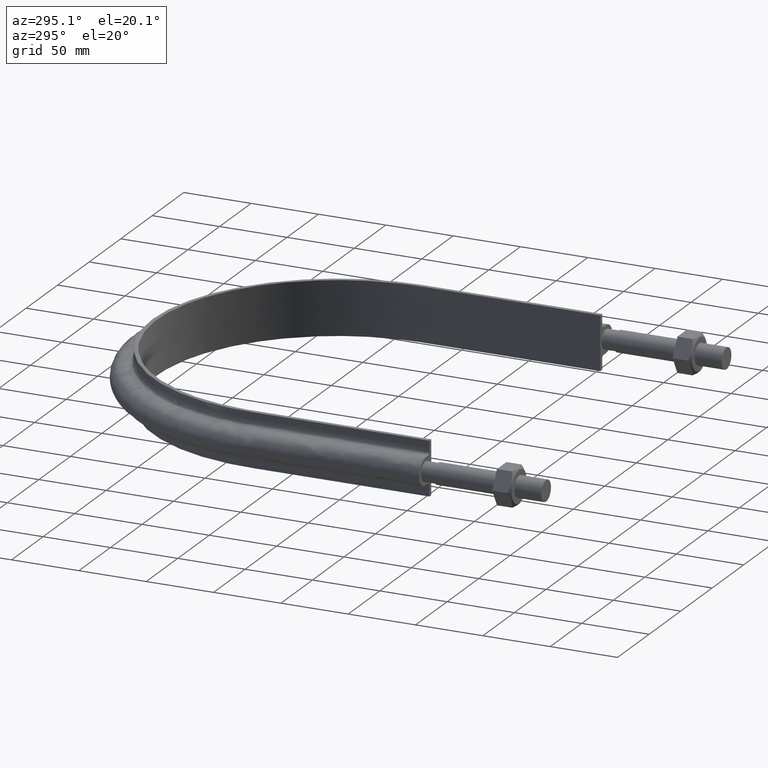
[diagram: clean part render]
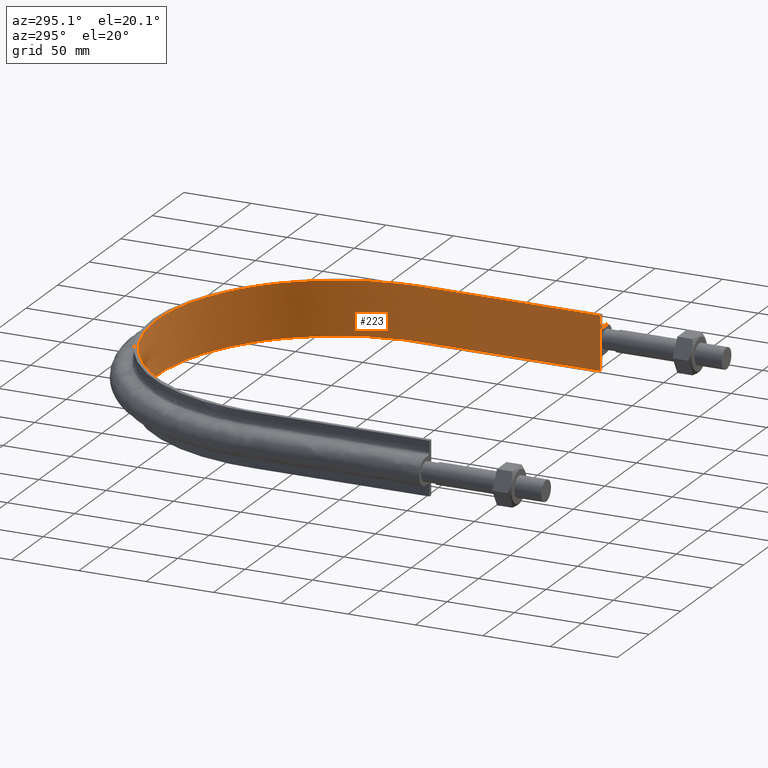
[diagram: same view with one face highlighted and labeled with its STEP entity id]
A machine part, auxiliary view. The second image highlights one B-rep face of the part: STEP entity #223.
In plain terms, the highlighted face is a SurfaceOfExtrusion surface.
Its self-contained STEP definition (entity closure, byte-faithful):
#223 = ADVANCED_FACE( '', ( #287 ), #288, .T. );
#287 = FACE_OUTER_BOUND( '', #970, .T. );
#288 = SURFACE_OF_LINEAR_EXTRUSION( '', #971, #972 );
#970 = EDGE_LOOP( '', ( #1682, #1683, #1684, #1685 ) );
#971 = B_SPLINE_CURVE_WITH_KNOTS( '', 3, ( #1686, #1687, #1688, #1689, #1690, #1691, #1692, #1693, #1694, #1695, #1696, #1697, #1698, #1699, #1700, #1701, #1702 ), .UNSPECIFIED., .F., .F., ( 4, 3, 1, 1, 1, 1, 1, 1, 1, 3, 4 ), ( -10.0000000000000, -9.00000000000000, -8.00000000000000, -7.00000000000000, -6.00000000000000, -5.00000000000000, -4.00000000000000, -3.00000000000000, -2.00000000000000, -1.00000000000000, 0.000000000000000 ), .UNSPECIFIED. );
#972 = VECTOR( '', #1703, 1000.00000000000 );
#1682 = ORIENTED_EDGE( '', *, *, #2056, .T. );
#1683 = ORIENTED_EDGE( '', *, *, #2057, .F. );
#1684 = ORIENTED_EDGE( '', *, *, #2053, .F. );
#1685 = ORIENTED_EDGE( '', *, *, #2058, .T. );
#1686 = CARTESIAN_POINT( '', ( -133.950000000000, 89.5000000000001, -440.423363781454 ) );
#1687 = CARTESIAN_POINT( '', ( -133.950000000000, 133.683333333333, -440.423363781454 ) );
#1688 = CARTESIAN_POINT( '', ( -133.950000000000, 177.866666666667, -440.423363781454 ) );
#1689 = CARTESIAN_POINT( '', ( -133.950000000000, 222.050000000000, -440.423363781454 ) );
#1690 = CARTESIAN_POINT( '', ( -133.950000000000, 239.566032700257, -440.423363781454 ) );
#1691 = CARTESIAN_POINT( '', ( -126.975474198415, 274.652216480459, -440.423363781454 ) );
#1692 = CARTESIAN_POINT( '', ( -97.1828205848687, 319.230867859828, -440.423363781454 ) );
#1693 = CARTESIAN_POINT( '', ( -52.5949635017385, 349.026032119855, -440.423363781454 ) );
#1694 = CARTESIAN_POINT( '', ( 9.95341556962034E-014, 359.486983940073, -440.423363781454 ) );
#1695 = CARTESIAN_POINT( '', ( 52.5949635017385, 349.026032119855, -440.423363781454 ) );
#1696 = CARTESIAN_POINT( '', ( 97.1828205848688, 319.230867859828, -440.423363781454 ) );
#1697 = CARTESIAN_POINT( '', ( 126.975474198415, 274.652216480460, -440.423363781454 ) );
#1698 = CARTESIAN_POINT( '', ( 133.950000000000, 239.566032700257, -440.423363781454 ) );
#1699 = CARTESIAN_POINT( '', ( 133.950000000000, 222.050000000000, -440.423363781454 ) );
#1700 = CARTESIAN_POINT( '', ( 133.950000000000, 177.866666666667, -440.423363781454 ) );
#1701 = CARTESIAN_POINT( '', ( 133.950000000000, 133.683333333333, -440.423363781454 ) );
#1702 = CARTESIAN_POINT( '', ( 133.950000000000, 89.5000000000000, -440.423363781454 ) );
#1703 = DIRECTION( '', ( 0.000000000000000, 0.000000000000000, 1.00000000000000 ) );
#2053 = EDGE_CURVE( '', #2166, #2167, #2168, .T. );
#2056 = EDGE_CURVE( '', #2171, #2172, #2173, .T. );
#2057 = EDGE_CURVE( '', #2167, #2172, #2174, .T. );
#2058 = EDGE_CURVE( '', #2166, #2171, #2175, .T. );
#2166 = VERTEX_POINT( '', #2736 );
#2167 = VERTEX_POINT( '', #2737 );
#2168 = LINE( '', #2738, #2739 );
#2171 = VERTEX_POINT( '', #2744 );
#2172 = VERTEX_POINT( '', #2745 );
#2173 = LINE( '', #2746, #2747 );
#2174 = B_SPLINE_CURVE_WITH_KNOTS( '', 3, ( #2748, #2749, #2750, #2751, #2752, #2753, #2754, #2755, #2756, #2757, #2758, #2759, #2760, #2761, #2762, #2763, #2764 ), .UNSPECIFIED., .F., .F., ( 4, 3, 1, 1, 1, 1, 1, 1, 1, 3, 4 ), ( -10.0000000000000, -9.00000000000000, -8.00000000000000, -7.00000000000000, -6.00000000000000, -5.00000000000000, -4.00000000000000, -3.00000000000000, -2.00000000000000, -1.00000000000000, 0.000000000000000 ), .UNSPECIFIED. );
#2175 = B_SPLINE_CURVE_WITH_KNOTS( '', 3, ( #2765, #2766, #2767, #2768, #2769, #2770, #2771, #2772, #2773, #2774, #2775, #2776, #2777, #2778, #2779, #2780, #2781 ), .UNSPECIFIED., .F., .F., ( 4, 3, 1, 1, 1, 1, 1, 1, 1, 3, 4 ), ( -10.0000000000000, -9.00000000000000, -8.00000000000000, -7.00000000000000, -6.00000000000000, -5.00000000000000, -4.00000000000000, -3.00000000000000, -2.00000000000000, -1.00000000000000, 0.000000000000000 ), .UNSPECIFIED. );
#2736 = CARTESIAN_POINT( '', ( -133.950000000000, 89.5000000000001, -20.0000000000000 ) );
#2737 = CARTESIAN_POINT( '', ( -133.950000000000, 89.5000000000001, 20.0000000000000 ) );
#2738 = CARTESIAN_POINT( '', ( -133.950000000000, 89.5000000000001, -440.423363781454 ) );
#2739 = VECTOR( '', #3146, 1000.00000000000 );
#2744 = CARTESIAN_POINT( '', ( 133.950000000000, 89.5000000000000, -20.0000000000000 ) );
#2745 = CARTESIAN_POINT( '', ( 133.950000000000, 89.5000000000001, 20.0000000000000 ) );
#2746 = CARTESIAN_POINT( '', ( 133.950000000000, 89.5000000000000, -440.423363781454 ) );
#2747 = VECTOR( '', #3149, 1000.00000000000 );
#2748 = CARTESIAN_POINT( '', ( -133.950000000000, 89.5000000000001, 20.0000000000001 ) );
#2749 = CARTESIAN_POINT( '', ( -133.950000000000, 133.683333333333, 20.0000000000001 ) );
#2750 = CARTESIAN_POINT( '', ( -133.950000000000, 177.866666666667, 20.0000000000001 ) );
#2751 = CARTESIAN_POINT( '', ( -133.950000000000, 222.050000000000, 20.0000000000001 ) );
#2752 = CARTESIAN_POINT( '', ( -133.950000000000, 239.566032700257, 20.0000000000001 ) );
#2753 = CARTESIAN_POINT( '', ( -126.975474198415, 274.652216480459, 20.0000000000001 ) );
#2754 = CARTESIAN_POINT( '', ( -97.1828205848687, 319.230867859828, 20.0000000000001 ) );
#2755 = CARTESIAN_POINT( '', ( -52.5949635017385, 349.026032119855, 20.0000000000001 ) );
#2756 = CARTESIAN_POINT( '', ( 9.95341556962034E-014, 359.486983940073, 20.0000000000001 ) );
#2757 = CARTESIAN_POINT( '', ( 52.5949635017385, 349.026032119855, 20.0000000000001 ) );
#2758 = CARTESIAN_POINT( '', ( 97.1828205848688, 319.230867859828, 20.0000000000001 ) );
#2759 = CARTESIAN_POINT( '', ( 126.975474198415, 274.652216480460, 20.0000000000001 ) );
#2760 = CARTESIAN_POINT( '', ( 133.950000000000, 239.566032700257, 20.0000000000001 ) );
#2761 = CARTESIAN_POINT( '', ( 133.950000000000, 222.050000000000, 20.0000000000001 ) );
#2762 = CARTESIAN_POINT( '', ( 133.950000000000, 177.866666666667, 20.0000000000001 ) );
#2763 = CARTESIAN_POINT( '', ( 133.950000000000, 133.683333333333, 20.0000000000001 ) );
#2764 = CARTESIAN_POINT( '', ( 133.950000000000, 89.5000000000000, 20.0000000000001 ) );
#2765 = CARTESIAN_POINT( '', ( -133.950000000000, 89.5000000000001, -20.0000000000000 ) );
#2766 = CARTESIAN_POINT( '', ( -133.950000000000, 133.683333333333, -20.0000000000000 ) );
#2767 = CARTESIAN_POINT( '', ( -133.950000000000, 177.866666666667, -20.0000000000000 ) );
#2768 = CARTESIAN_POINT( '', ( -133.950000000000, 222.050000000000, -20.0000000000000 ) );
#2769 = CARTESIAN_POINT( '', ( -133.950000000000, 239.566032700257, -20.0000000000000 ) );
#2770 = CARTESIAN_POINT( '', ( -126.975474198415, 274.652216480459, -20.0000000000000 ) );
#2771 = CARTESIAN_POINT( '', ( -97.1828205848687, 319.230867859828, -20.0000000000000 ) );
#2772 = CARTESIAN_POINT( '', ( -52.5949635017385, 349.026032119855, -20.0000000000000 ) );
#2773 = CARTESIAN_POINT( '', ( 9.95341556962034E-014, 359.486983940073, -20.0000000000000 ) );
#2774 = CARTESIAN_POINT( '', ( 52.5949635017385, 349.026032119855, -20.0000000000000 ) );
#2775 = CARTESIAN_POINT( '', ( 97.1828205848688, 319.230867859828, -20.0000000000000 ) );
#2776 = CARTESIAN_POINT( '', ( 126.975474198415, 274.652216480460, -20.0000000000000 ) );
#2777 = CARTESIAN_POINT( '', ( 133.950000000000, 239.566032700257, -20.0000000000000 ) );
#2778 = CARTESIAN_POINT( '', ( 133.950000000000, 222.050000000000, -20.0000000000000 ) );
#2779 = CARTESIAN_POINT( '', ( 133.950000000000, 177.866666666667, -20.0000000000000 ) );
#2780 = CARTESIAN_POINT( '', ( 133.950000000000, 133.683333333333, -20.0000000000000 ) );
#2781 = CARTESIAN_POINT( '', ( 133.950000000000, 89.5000000000000, -20.0000000000000 ) );
#3146 = DIRECTION( '', ( 0.000000000000000, 0.000000000000000, 1.00000000000000 ) );
#3149 = DIRECTION( '', ( 0.000000000000000, 0.000000000000000, 1.00000000000000 ) );